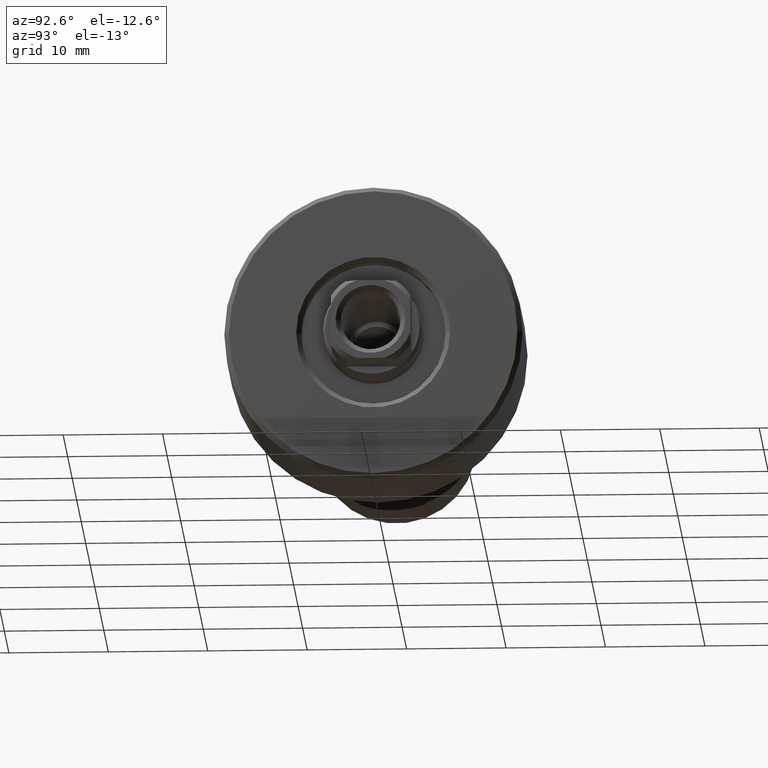
[diagram: clean part render]
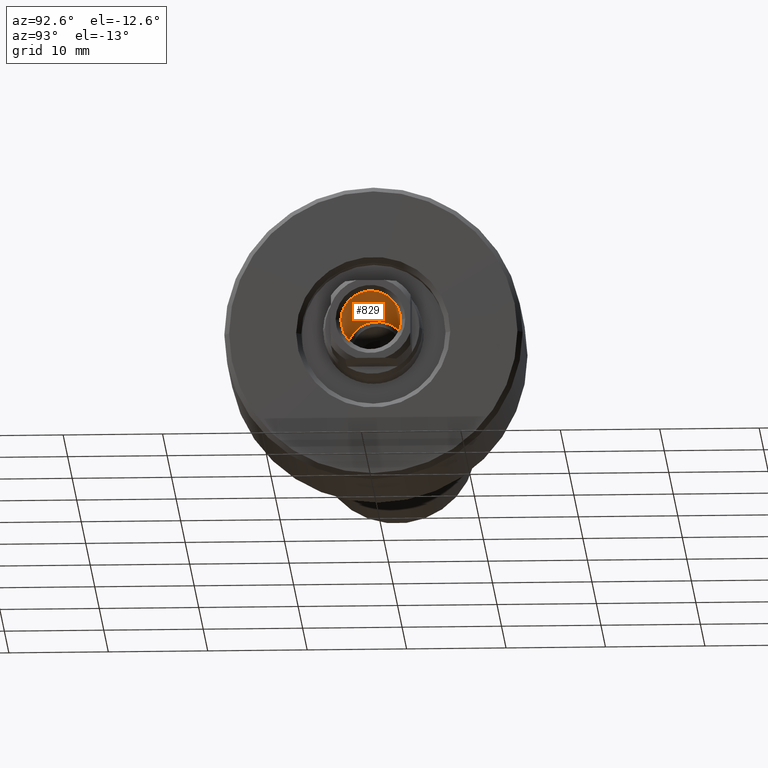
[diagram: same view with one face highlighted and labeled with its STEP entity id]
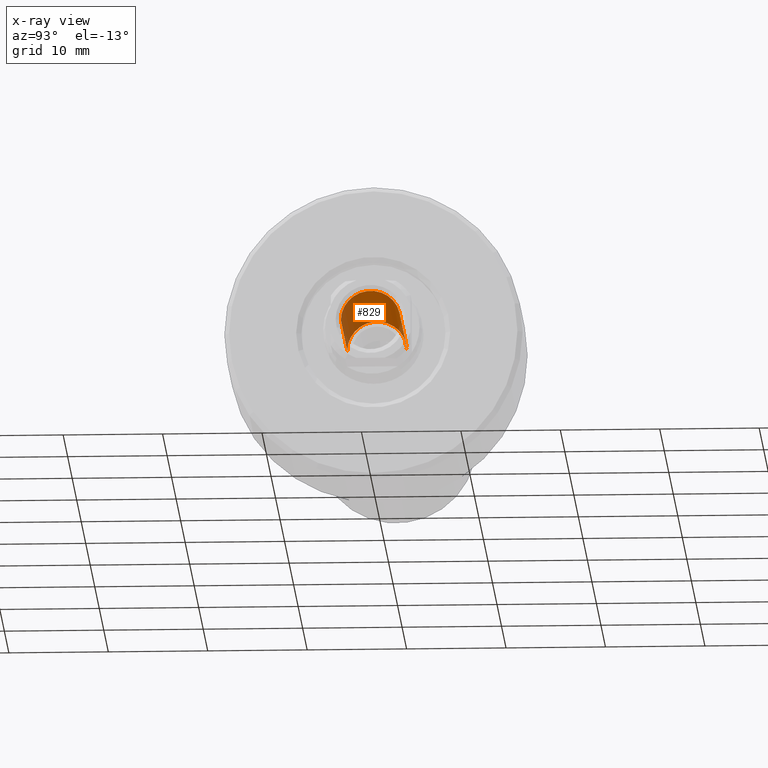
[diagram: x-ray of the same camera — body ghosted, the highlighted face saturated]
A machine part, auxiliary view. The second image highlights one B-rep face of the part: STEP entity #829.
The next image is the same camera in x-ray: the body ghosted, the highlighted face saturated — about 4% of this face is hidden behind the body in this view.
In plain terms, the highlighted cylindrical surface (edge-blend (fillet) strip) has radius 3 mm, axis along (1, -0, 0).
Its self-contained STEP definition (entity closure, byte-faithful):
#20 = CARTESIAN_POINT ( 'NONE',  ( 45.29999999999994031, -3.000000000001041833, 3.673940397442415842E-16 ) ) ;
#84 = DIRECTION ( 'NONE',  ( 1.000000000000000000, -1.657264799492230625E-14, -0.000000000000000000 ) ) ;
#153 = VERTEX_POINT ( 'NONE', #191 ) ;
#185 = VECTOR ( 'NONE', #2090, 1000.000000000000000 ) ;
#191 = CARTESIAN_POINT ( 'NONE',  ( 45.30000000000003268, 2.999999999999540368, 0.000000000000000000 ) ) ;
#230 = AXIS2_PLACEMENT_3D ( 'NONE', #1764, #1390, #1815 ) ;
#338 = AXIS2_PLACEMENT_3D ( 'NONE', #855, #1781, #1048 ) ;
#396 = VERTEX_POINT ( 'NONE', #908 ) ;
#597 = LINE ( 'NONE', #1668, #185 ) ;
#652 = CARTESIAN_POINT ( 'NONE',  ( 45.30000000000003268, 2.999999999999540368, 0.000000000000000000 ) ) ;
#829 = ADVANCED_FACE ( 'NONE', ( #2342 ), #1556, .F. ) ;
#846 = DIRECTION ( 'NONE',  ( 1.000000000000000000, -1.657264799492230625E-14, -0.000000000000000000 ) ) ;
#855 = CARTESIAN_POINT ( 'NONE',  ( 45.29999999999998295, -7.507409541699801707E-13, 0.000000000000000000 ) ) ;
#857 = AXIS2_PLACEMENT_3D ( 'NONE', #1752, #84, #2114 ) ;
#908 = CARTESIAN_POINT ( 'NONE',  ( 59.50000000000010658, 2.999999999999305000, 0.000000000000000000 ) ) ;
#1046 = VERTEX_POINT ( 'NONE', #2393 ) ;
#1048 = DIRECTION ( 'NONE',  ( 1.619075244244862919E-14, 1.000000000000000000, 0.000000000000000000 ) ) ;
#1310 = ORIENTED_EDGE ( 'NONE', *, *, #1473, .T. ) ;
#1390 = DIRECTION ( 'NONE',  ( 1.000000000000000000, -1.657264799492212008E-14, 0.000000000000000000 ) ) ;
#1406 = EDGE_LOOP ( 'NONE', ( #1667, #1794, #1310, #2291 ) ) ;
#1473 = EDGE_CURVE ( 'NONE', #153, #396, #2340, .T. ) ;
#1533 = EDGE_CURVE ( 'NONE', #396, #1046, #1881, .T. ) ;
#1556 = CYLINDRICAL_SURFACE ( 'NONE', #857, 3.000000000000290878 ) ;
#1667 = ORIENTED_EDGE ( 'NONE', *, *, #1817, .F. ) ;
#1668 = CARTESIAN_POINT ( 'NONE',  ( 45.29999999999994031, -3.000000000001041833, 3.673940397442415842E-16 ) ) ;
#1752 = CARTESIAN_POINT ( 'NONE',  ( 45.29999999999998295, -7.507409541699801707E-13, 0.000000000000000000 ) ) ;
#1764 = CARTESIAN_POINT ( 'NONE',  ( 59.50000000000005684, -9.860725556978780642E-13, 0.000000000000000000 ) ) ;
#1781 = DIRECTION ( 'NONE',  ( 1.000000000000000000, -1.657264799492230625E-14, 0.000000000000000000 ) ) ;
#1794 = ORIENTED_EDGE ( 'NONE', *, *, #2370, .F. ) ;
#1815 = DIRECTION ( 'NONE',  ( -1.619075244244862919E-14, -1.000000000000000000, 0.000000000000000000 ) ) ;
#1817 = EDGE_CURVE ( 'NONE', #2284, #1046, #597, .T. ) ;
#1881 = CIRCLE ( 'NONE', #230, 3.000000000000290878 ) ;
#1925 = VECTOR ( 'NONE', #846, 1000.000000000000000 ) ;
#2004 = CIRCLE ( 'NONE', #338, 3.000000000000290878 ) ;
#2090 = DIRECTION ( 'NONE',  ( 1.000000000000000000, -1.657264799492230625E-14, -0.000000000000000000 ) ) ;
#2114 = DIRECTION ( 'NONE',  ( 1.619075244244862919E-14, 1.000000000000000000, 0.000000000000000000 ) ) ;
#2284 = VERTEX_POINT ( 'NONE', #20 ) ;
#2291 = ORIENTED_EDGE ( 'NONE', *, *, #1533, .T. ) ;
#2340 = LINE ( 'NONE', #652, #1925 ) ;
#2342 = FACE_OUTER_BOUND ( 'NONE', #1406, .T. ) ;
#2370 = EDGE_CURVE ( 'NONE', #153, #2284, #2004, .T. ) ;
#2393 = CARTESIAN_POINT ( 'NONE',  ( 59.50000000000001421, -3.000000000001276756, 3.673940397442559316E-16 ) ) ;